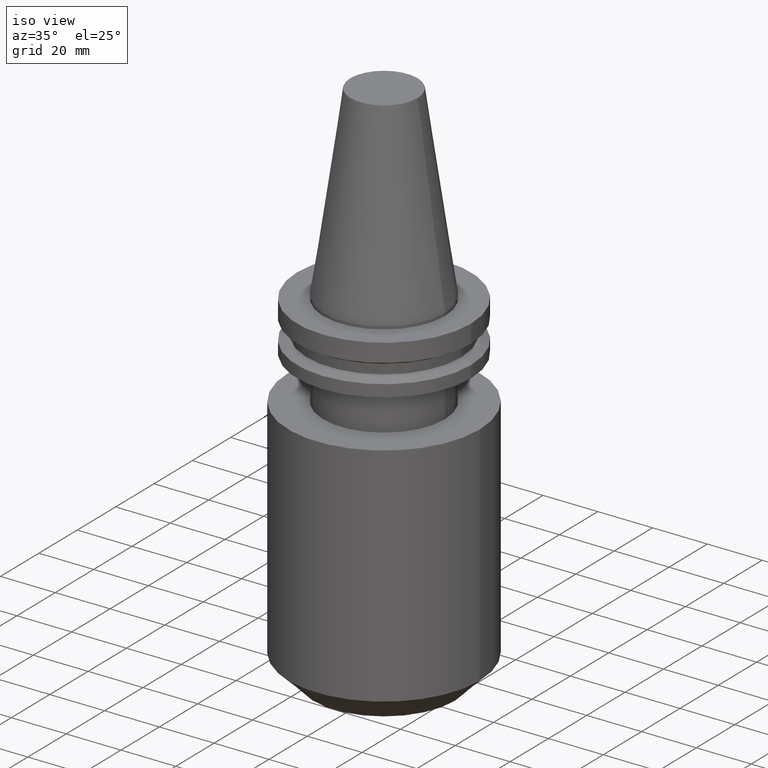
[diagram: clean part render]
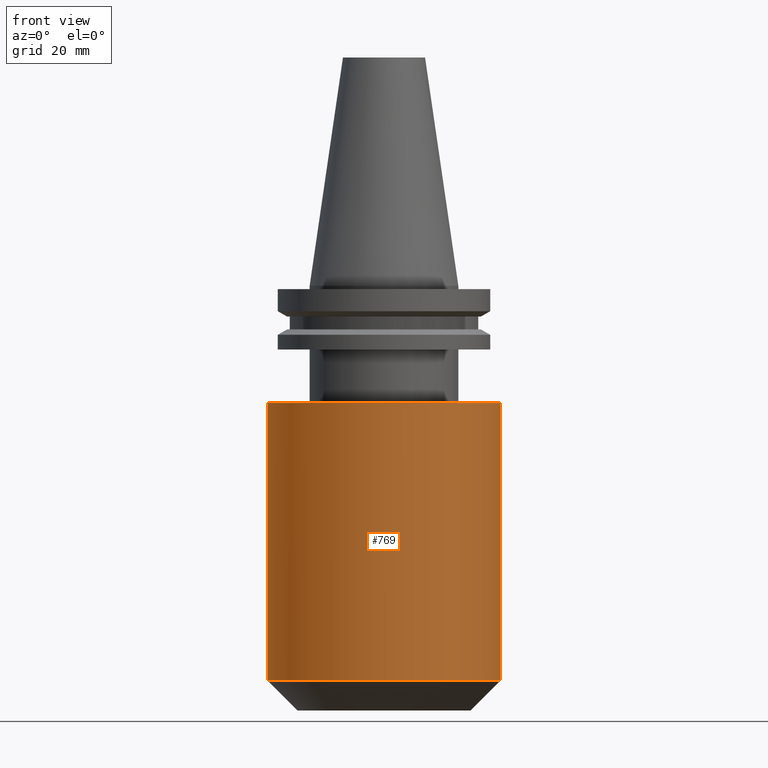
[diagram: tour spotlight — one face highlighted and labeled with its STEP entity id]
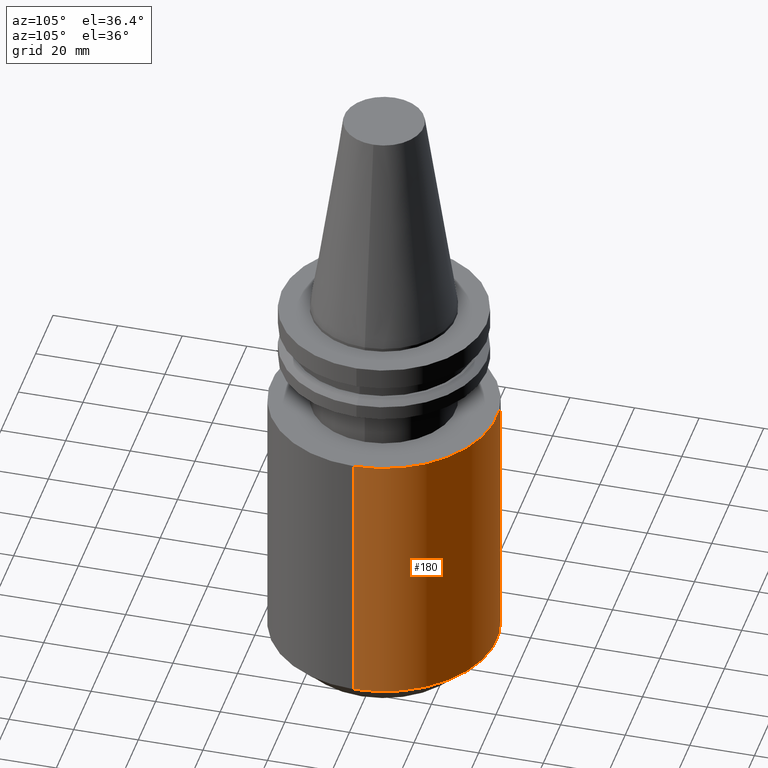
[diagram: tour spotlight — one face highlighted and labeled with its STEP entity id]
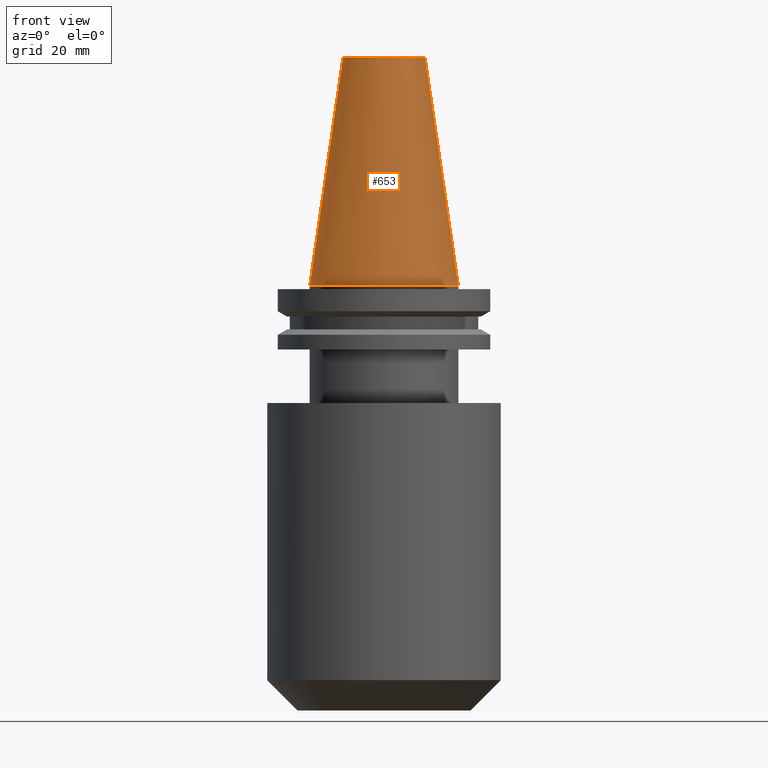
[diagram: tour spotlight — one face highlighted and labeled with its STEP entity id]
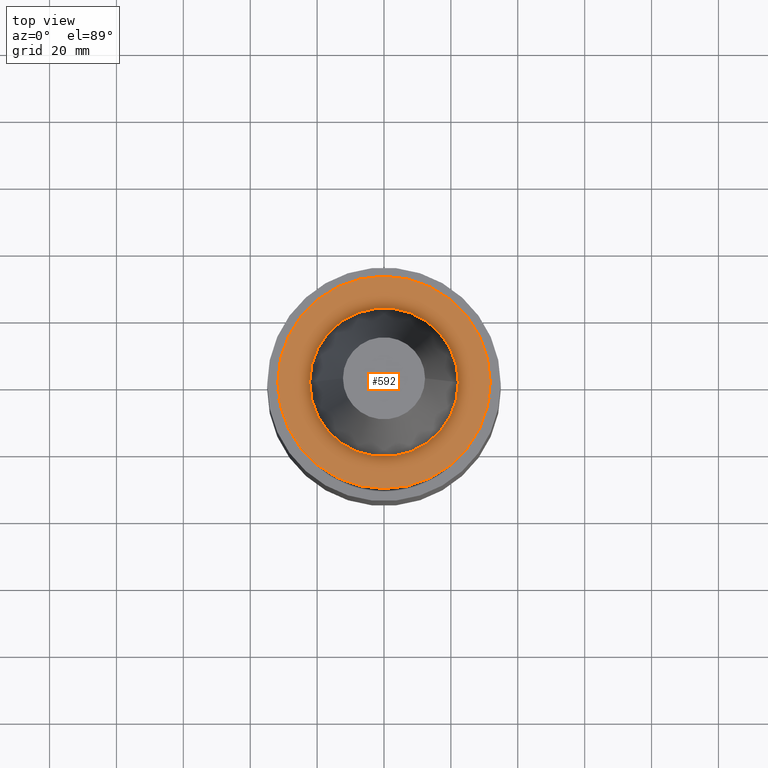
[diagram: tour spotlight — one face highlighted and labeled with its STEP entity id]
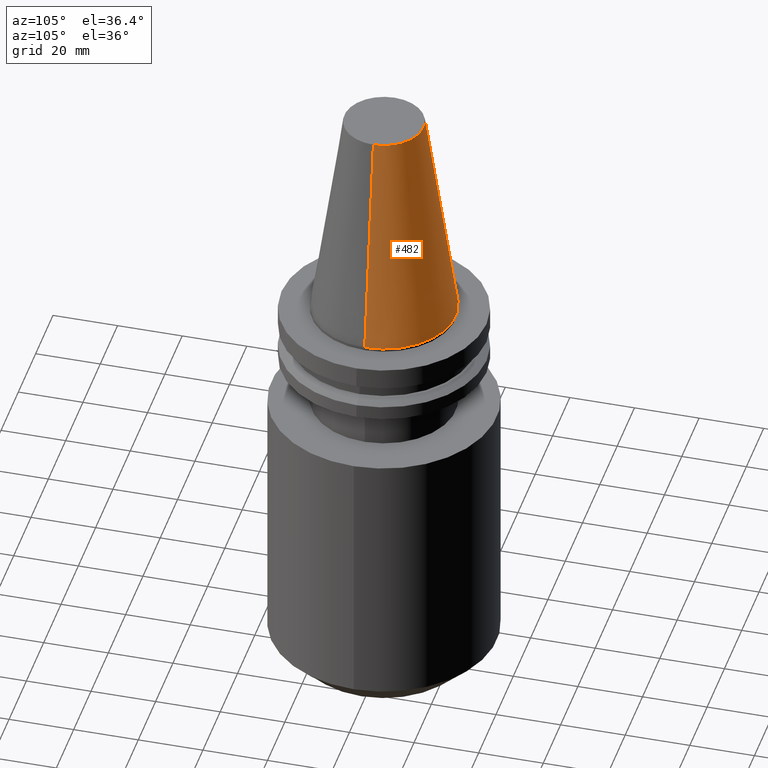
[diagram: tour spotlight — one face highlighted and labeled with its STEP entity id]
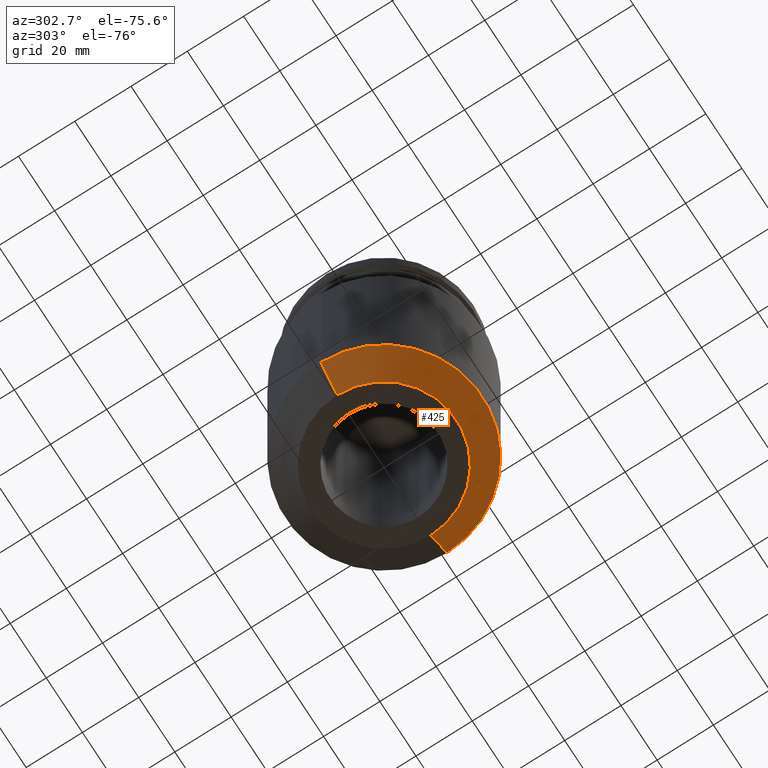
[diagram: tour spotlight — one face highlighted and labeled with its STEP entity id]
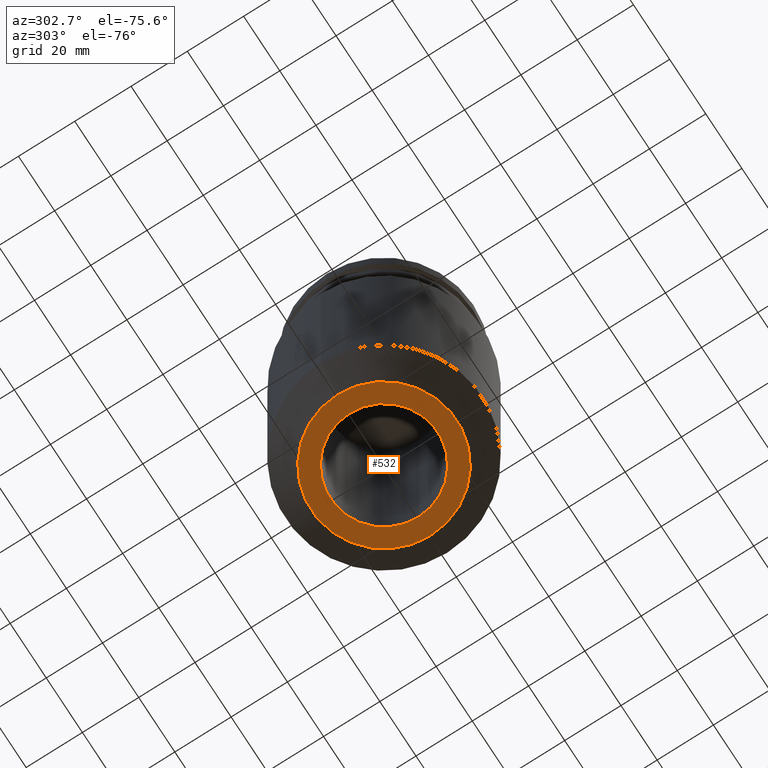
[diagram: tour spotlight — one face highlighted and labeled with its STEP entity id]
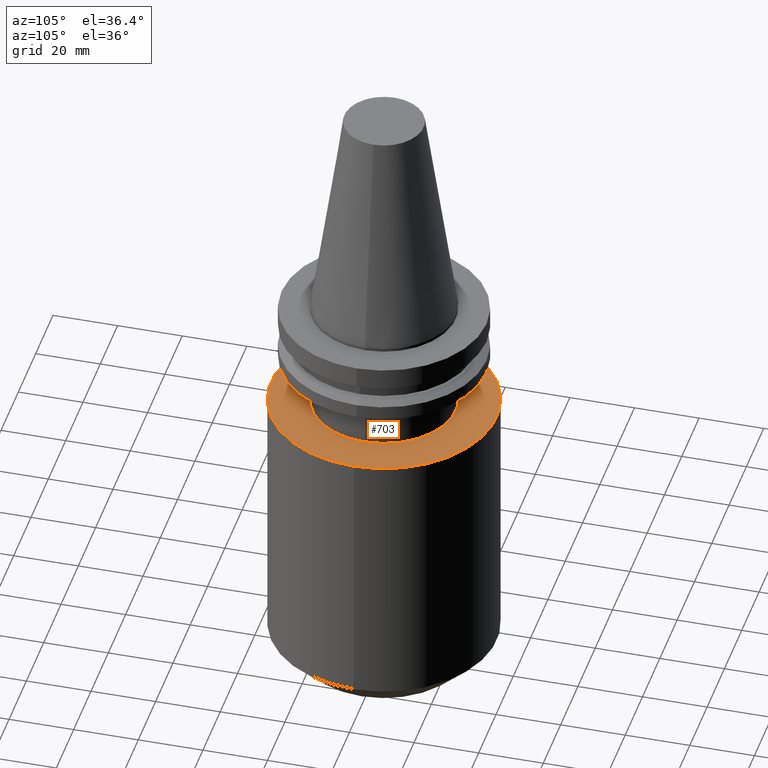
[diagram: tour spotlight — one face highlighted and labeled with its STEP entity id]
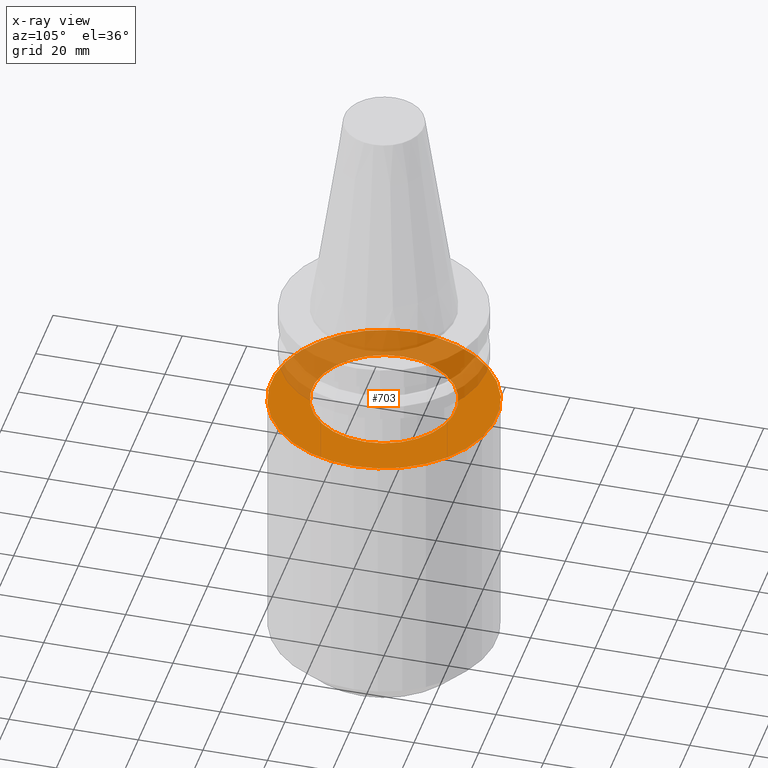
[diagram: x-ray of the same camera — body ghosted, this tour face saturated]
A machine part: a face-by-face anatomy tour. The part has 30 B-rep faces; the first image is the clean iso view, then the 8 largest visible faces are spotlighted one at a time (largest first), each with its STEP entity span.

Face 1 — front view, entity #769. In plain terms, the highlighted cylindrical surface (partial cylindrical patch) has radius 34.925 mm, axis along (-0, -0, 1).
Definition (entity closure, byte-faithful):
#8 = ORIENTED_EDGE ( 'NONE', *, *, #758, .F. ) ;
#11 = VERTEX_POINT ( 'NONE', #57 ) ;
#35 = CARTESIAN_POINT ( 'NONE',  ( 34.92499999999999716, 0.000000000000000000, 0.000000000000000000 ) ) ;
#50 = VERTEX_POINT ( 'NONE', #563 ) ;
#57 = CARTESIAN_POINT ( 'NONE',  ( -34.92499999999999716, 4.277078946022130887E-15, -35.04999999999999716 ) ) ;
#97 = CYLINDRICAL_SURFACE ( 'NONE', #293, 34.92499999999999716 ) ;
#110 = CARTESIAN_POINT ( 'NONE',  ( 0.000000000000000000, 0.000000000000000000, -117.9000000000000057 ) ) ;
#144 = EDGE_CURVE ( 'NONE', #11, #813, #384, .T. ) ;
#159 = ORIENTED_EDGE ( 'NONE', *, *, #233, .T. ) ;
#172 = VECTOR ( 'NONE', #296, 1000.000000000000000 ) ;
#186 = CARTESIAN_POINT ( 'NONE',  ( -34.92499999999999716, 4.277078946022130887E-15, -117.9000000000000057 ) ) ;
#226 = DIRECTION ( 'NONE',  ( -0.000000000000000000, -0.000000000000000000, 1.000000000000000000 ) ) ;
#231 = CARTESIAN_POINT ( 'NONE',  ( -34.92499999999999716, 4.277078946022130887E-15, 0.000000000000000000 ) ) ;
#233 = EDGE_CURVE ( 'NONE', #50, #813, #357, .T. ) ;
#282 = EDGE_LOOP ( 'NONE', ( #8, #328, #159, #304 ) ) ;
#284 = DIRECTION ( 'NONE',  ( 1.000000000000000000, 0.000000000000000000, 0.000000000000000000 ) ) ;
#293 = AXIS2_PLACEMENT_3D ( 'NONE', #492, #756, #767 ) ;
#296 = DIRECTION ( 'NONE',  ( -0.000000000000000000, -0.000000000000000000, 1.000000000000000000 ) ) ;
#304 = ORIENTED_EDGE ( 'NONE', *, *, #144, .F. ) ;
#305 = FACE_OUTER_BOUND ( 'NONE', #282, .T. ) ;
#328 = ORIENTED_EDGE ( 'NONE', *, *, #781, .T. ) ;
#357 = LINE ( 'NONE', #35, #172 ) ;
#384 = CIRCLE ( 'NONE', #631, 34.92499999999999716 ) ;
#435 = DIRECTION ( 'NONE',  ( 1.000000000000000000, 0.000000000000000000, 0.000000000000000000 ) ) ;
#438 = LINE ( 'NONE', #231, #543 ) ;
#472 = CARTESIAN_POINT ( 'NONE',  ( 34.92499999999999716, 0.000000000000000000, -35.04999999999999716 ) ) ;
#492 = CARTESIAN_POINT ( 'NONE',  ( 0.000000000000000000, 0.000000000000000000, 0.000000000000000000 ) ) ;
#533 = VERTEX_POINT ( 'NONE', #186 ) ;
#543 = VECTOR ( 'NONE', #226, 1000.000000000000000 ) ;
#563 = CARTESIAN_POINT ( 'NONE',  ( 34.92499999999999716, 0.000000000000000000, -117.9000000000000057 ) ) ;
#627 = DIRECTION ( 'NONE',  ( -0.000000000000000000, -0.000000000000000000, 1.000000000000000000 ) ) ;
#631 = AXIS2_PLACEMENT_3D ( 'NONE', #681, #627, #284 ) ;
#661 = CIRCLE ( 'NONE', #776, 34.92499999999999716 ) ;
#681 = CARTESIAN_POINT ( 'NONE',  ( 0.000000000000000000, 0.000000000000000000, -35.04999999999999716 ) ) ;
#700 = DIRECTION ( 'NONE',  ( -0.000000000000000000, -0.000000000000000000, 1.000000000000000000 ) ) ;
#756 = DIRECTION ( 'NONE',  ( -0.000000000000000000, -0.000000000000000000, 1.000000000000000000 ) ) ;
#758 = EDGE_CURVE ( 'NONE', #533, #11, #438, .T. ) ;
#767 = DIRECTION ( 'NONE',  ( 1.000000000000000000, 0.000000000000000000, 0.000000000000000000 ) ) ;
#769 = ADVANCED_FACE ( 'NONE', ( #305 ), #97, .T. ) ;
#776 = AXIS2_PLACEMENT_3D ( 'NONE', #110, #700, #435 ) ;
#781 = EDGE_CURVE ( 'NONE', #533, #50, #661, .T. ) ;
#813 = VERTEX_POINT ( 'NONE', #472 ) ;

Face 2 — auxiliary view, entity #180. In plain terms, the highlighted cylindrical surface (partial cylindrical patch) has radius 34.925 mm, axis along (-0, -0, 1).
Definition (entity closure, byte-faithful):
#11 = VERTEX_POINT ( 'NONE', #57 ) ;
#33 = ORIENTED_EDGE ( 'NONE', *, *, #418, .T. ) ;
#35 = CARTESIAN_POINT ( 'NONE',  ( 34.92499999999999716, 0.000000000000000000, 0.000000000000000000 ) ) ;
#50 = VERTEX_POINT ( 'NONE', #563 ) ;
#57 = CARTESIAN_POINT ( 'NONE',  ( -34.92499999999999716, 4.277078946022130887E-15, -35.04999999999999716 ) ) ;
#102 = DIRECTION ( 'NONE',  ( 1.000000000000000000, 0.000000000000000000, 0.000000000000000000 ) ) ;
#107 = DIRECTION ( 'NONE',  ( 1.000000000000000000, 0.000000000000000000, 0.000000000000000000 ) ) ;
#131 = AXIS2_PLACEMENT_3D ( 'NONE', #536, #811, #784 ) ;
#161 = CARTESIAN_POINT ( 'NONE',  ( 0.000000000000000000, 0.000000000000000000, -35.04999999999999716 ) ) ;
#172 = VECTOR ( 'NONE', #296, 1000.000000000000000 ) ;
#180 = ADVANCED_FACE ( 'NONE', ( #752 ), #221, .T. ) ;
#186 = CARTESIAN_POINT ( 'NONE',  ( -34.92499999999999716, 4.277078946022130887E-15, -117.9000000000000057 ) ) ;
#218 = EDGE_CURVE ( 'NONE', #813, #11, #361, .T. ) ;
#220 = CIRCLE ( 'NONE', #131, 34.92499999999999716 ) ;
#221 = CYLINDRICAL_SURFACE ( 'NONE', #848, 34.92499999999999716 ) ;
#226 = DIRECTION ( 'NONE',  ( -0.000000000000000000, -0.000000000000000000, 1.000000000000000000 ) ) ;
#231 = CARTESIAN_POINT ( 'NONE',  ( -34.92499999999999716, 4.277078946022130887E-15, 0.000000000000000000 ) ) ;
#233 = EDGE_CURVE ( 'NONE', #50, #813, #357, .T. ) ;
#277 = AXIS2_PLACEMENT_3D ( 'NONE', #161, #424, #102 ) ;
#296 = DIRECTION ( 'NONE',  ( -0.000000000000000000, -0.000000000000000000, 1.000000000000000000 ) ) ;
#357 = LINE ( 'NONE', #35, #172 ) ;
#361 = CIRCLE ( 'NONE', #277, 34.92499999999999716 ) ;
#418 = EDGE_CURVE ( 'NONE', #50, #533, #220, .T. ) ;
#424 = DIRECTION ( 'NONE',  ( -0.000000000000000000, -0.000000000000000000, 1.000000000000000000 ) ) ;
#438 = LINE ( 'NONE', #231, #543 ) ;
#472 = CARTESIAN_POINT ( 'NONE',  ( 34.92499999999999716, 0.000000000000000000, -35.04999999999999716 ) ) ;
#520 = ORIENTED_EDGE ( 'NONE', *, *, #233, .F. ) ;
#523 = ORIENTED_EDGE ( 'NONE', *, *, #218, .F. ) ;
#533 = VERTEX_POINT ( 'NONE', #186 ) ;
#536 = CARTESIAN_POINT ( 'NONE',  ( 0.000000000000000000, 0.000000000000000000, -117.9000000000000057 ) ) ;
#543 = VECTOR ( 'NONE', #226, 1000.000000000000000 ) ;
#563 = CARTESIAN_POINT ( 'NONE',  ( 34.92499999999999716, 0.000000000000000000, -117.9000000000000057 ) ) ;
#608 = DIRECTION ( 'NONE',  ( -0.000000000000000000, -0.000000000000000000, 1.000000000000000000 ) ) ;
#690 = EDGE_LOOP ( 'NONE', ( #33, #840, #523, #520 ) ) ;
#752 = FACE_OUTER_BOUND ( 'NONE', #690, .T. ) ;
#758 = EDGE_CURVE ( 'NONE', #533, #11, #438, .T. ) ;
#762 = CARTESIAN_POINT ( 'NONE',  ( 0.000000000000000000, 0.000000000000000000, 0.000000000000000000 ) ) ;
#784 = DIRECTION ( 'NONE',  ( 1.000000000000000000, 0.000000000000000000, 0.000000000000000000 ) ) ;
#811 = DIRECTION ( 'NONE',  ( -0.000000000000000000, -0.000000000000000000, 1.000000000000000000 ) ) ;
#813 = VERTEX_POINT ( 'NONE', #472 ) ;
#840 = ORIENTED_EDGE ( 'NONE', *, *, #758, .T. ) ;
#848 = AXIS2_PLACEMENT_3D ( 'NONE', #762, #608, #107 ) ;

Face 3 — front view, entity #653. In plain terms, the highlighted conical surface has half-angle 8.297 deg.
Definition (entity closure, byte-faithful):
#58 = EDGE_CURVE ( 'NONE', #801, #558, #557, .T. ) ;
#76 = ORIENTED_EDGE ( 'NONE', *, *, #245, .T. ) ;
#84 = CARTESIAN_POINT ( 'NONE',  ( 0.000000000000000000, 0.000000000000000000, 0.000000000000000000 ) ) ;
#96 = ORIENTED_EDGE ( 'NONE', *, *, #359, .F. ) ;
#104 = DIRECTION ( 'NONE',  ( -0.000000000000000000, -0.000000000000000000, 1.000000000000000000 ) ) ;
#113 = CARTESIAN_POINT ( 'NONE',  ( -22.22500000000000142, 0.000000000000000000, 0.000000000000000000 ) ) ;
#156 = EDGE_CURVE ( 'NONE', #698, #558, #171, .T. ) ;
#170 = DIRECTION ( 'NONE',  ( -0.1443082272672999711, 0.000000000000000000, -0.9895327864921755756 ) ) ;
#171 = CIRCLE ( 'NONE', #190, 22.22500000000000142 ) ;
#188 = EDGE_LOOP ( 'NONE', ( #433, #96, #76, #696 ) ) ;
#190 = AXIS2_PLACEMENT_3D ( 'NONE', #227, #237, #365 ) ;
#227 = CARTESIAN_POINT ( 'NONE',  ( 0.000000000000000000, 0.000000000000000000, 0.000000000000000000 ) ) ;
#237 = DIRECTION ( 'NONE',  ( -0.000000000000000000, -0.000000000000000000, 1.000000000000000000 ) ) ;
#245 = EDGE_CURVE ( 'NONE', #538, #698, #830, .T. ) ;
#271 = DIRECTION ( 'NONE',  ( 0.000000000000000000, 0.000000000000000000, -1.000000000000000000 ) ) ;
#275 = AXIS2_PLACEMENT_3D ( 'NONE', #84, #271, #341 ) ;
#295 = VECTOR ( 'NONE', #170, 999.9999999999998863 ) ;
#341 = DIRECTION ( 'NONE',  ( -1.000000000000000000, 0.000000000000000000, 0.000000000000000000 ) ) ;
#359 = EDGE_CURVE ( 'NONE', #538, #801, #436, .T. ) ;
#365 = DIRECTION ( 'NONE',  ( 1.000000000000000000, 0.000000000000000000, 0.000000000000000000 ) ) ;
#415 = AXIS2_PLACEMENT_3D ( 'NONE', #747, #104, #683 ) ;
#433 = ORIENTED_EDGE ( 'NONE', *, *, #58, .F. ) ;
#436 = CIRCLE ( 'NONE', #415, 12.27178102086201150 ) ;
#481 = CONICAL_SURFACE ( 'NONE', #275, 22.22500000000000142, 0.1448138465474119174 ) ;
#493 = CARTESIAN_POINT ( 'NONE',  ( -22.22500000000000142, 0.000000000000000000, 0.000000000000000000 ) ) ;
#538 = VERTEX_POINT ( 'NONE', #854 ) ;
#557 = LINE ( 'NONE', #833, #837 ) ;
#558 = VERTEX_POINT ( 'NONE', #795 ) ;
#593 = FACE_OUTER_BOUND ( 'NONE', #188, .T. ) ;
#603 = CARTESIAN_POINT ( 'NONE',  ( 12.27178102086201150, 2.112318622904291439E-15, 68.25000000000000000 ) ) ;
#653 = ADVANCED_FACE ( 'NONE', ( #593 ), #481, .T. ) ;
#683 = DIRECTION ( 'NONE',  ( 1.000000000000000000, 0.000000000000000000, 0.000000000000000000 ) ) ;
#696 = ORIENTED_EDGE ( 'NONE', *, *, #156, .T. ) ;
#698 = VERTEX_POINT ( 'NONE', #113 ) ;
#747 = CARTESIAN_POINT ( 'NONE',  ( 0.000000000000000000, 0.000000000000000000, 68.25000000000000000 ) ) ;
#765 = DIRECTION ( 'NONE',  ( 0.1443082272672999711, 1.767266086135276757E-17, -0.9895327864921755756 ) ) ;
#795 = CARTESIAN_POINT ( 'NONE',  ( 22.22500000000000142, 2.721777511104992849E-15, 0.000000000000000000 ) ) ;
#801 = VERTEX_POINT ( 'NONE', #603 ) ;
#830 = LINE ( 'NONE', #493, #295 ) ;
#833 = CARTESIAN_POINT ( 'NONE',  ( 22.22500000000000142, 2.721777511104992849E-15, 0.000000000000000000 ) ) ;
#837 = VECTOR ( 'NONE', #765, 999.9999999999998863 ) ;
#854 = CARTESIAN_POINT ( 'NONE',  ( -12.27178102086201150, 0.000000000000000000, 68.25000000000000000 ) ) ;

Face 4 — top view, entity #592. In plain terms, the highlighted planar face has unit normal (0, 0, -1).
Definition (entity closure, byte-faithful):
#12 = FACE_BOUND ( 'NONE', #132, .T. ) ;
#41 = DIRECTION ( 'NONE',  ( -0.000000000000000000, -0.000000000000000000, 1.000000000000000000 ) ) ;
#48 = EDGE_CURVE ( 'NONE', #200, #129, #564, .T. ) ;
#119 = AXIS2_PLACEMENT_3D ( 'NONE', #692, #41, #169 ) ;
#129 = VERTEX_POINT ( 'NONE', #419 ) ;
#132 = EDGE_LOOP ( 'NONE', ( #517, #618 ) ) ;
#142 = AXIS2_PLACEMENT_3D ( 'NONE', #503, #717, #778 ) ;
#146 = PLANE ( 'NONE',  #819 ) ;
#151 = CARTESIAN_POINT ( 'NONE',  ( 22.22500000000000142, 0.000000000000000000, -1.000000000000000888 ) ) ;
#160 = DIRECTION ( 'NONE',  ( -0.000000000000000000, -0.000000000000000000, 1.000000000000000000 ) ) ;
#164 = CARTESIAN_POINT ( 'NONE',  ( -22.22500000000000142, 2.721777511104992849E-15, -1.000000000000000888 ) ) ;
#167 = DIRECTION ( 'NONE',  ( -0.000000000000000000, -0.000000000000000000, 1.000000000000000000 ) ) ;
#169 = DIRECTION ( 'NONE',  ( 1.000000000000000000, 0.000000000000000000, 0.000000000000000000 ) ) ;
#200 = VERTEX_POINT ( 'NONE', #348 ) ;
#206 = CARTESIAN_POINT ( 'NONE',  ( 0.000000000000000000, 31.75000000000000000, -0.9999999999999995559 ) ) ;
#347 = DIRECTION ( 'NONE',  ( -1.000000000000000000, 0.000000000000000000, -0.000000000000000000 ) ) ;
#348 = CARTESIAN_POINT ( 'NONE',  ( -31.75000000000000000, 3.888253587292846476E-15, -1.000000000000000888 ) ) ;
#391 = DIRECTION ( 'NONE',  ( 0.000000000000000000, 0.000000000000000000, -1.000000000000000000 ) ) ;
#419 = CARTESIAN_POINT ( 'NONE',  ( 31.75000000000000000, 0.000000000000000000, -1.000000000000000888 ) ) ;
#475 = CIRCLE ( 'NONE', #119, 31.75000000000000000 ) ;
#503 = CARTESIAN_POINT ( 'NONE',  ( 0.000000000000000000, 0.000000000000000000, -1.000000000000000888 ) ) ;
#507 = EDGE_CURVE ( 'NONE', #671, #783, #586, .T. ) ;
#517 = ORIENTED_EDGE ( 'NONE', *, *, #507, .F. ) ;
#524 = FACE_OUTER_BOUND ( 'NONE', #740, .T. ) ;
#564 = CIRCLE ( 'NONE', #705, 31.75000000000000000 ) ;
#579 = ORIENTED_EDGE ( 'NONE', *, *, #48, .T. ) ;
#586 = CIRCLE ( 'NONE', #142, 22.22500000000000142 ) ;
#592 = ADVANCED_FACE ( 'NONE', ( #12, #524 ), #146, .F. ) ;
#618 = ORIENTED_EDGE ( 'NONE', *, *, #842, .F. ) ;
#623 = DIRECTION ( 'NONE',  ( 1.000000000000000000, 0.000000000000000000, 0.000000000000000000 ) ) ;
#630 = CIRCLE ( 'NONE', #816, 22.22500000000000142 ) ;
#671 = VERTEX_POINT ( 'NONE', #151 ) ;
#686 = DIRECTION ( 'NONE',  ( 1.000000000000000000, 0.000000000000000000, 0.000000000000000000 ) ) ;
#692 = CARTESIAN_POINT ( 'NONE',  ( 0.000000000000000000, 0.000000000000000000, -1.000000000000000888 ) ) ;
#705 = AXIS2_PLACEMENT_3D ( 'NONE', #768, #167, #623 ) ;
#717 = DIRECTION ( 'NONE',  ( -0.000000000000000000, -0.000000000000000000, 1.000000000000000000 ) ) ;
#740 = EDGE_LOOP ( 'NONE', ( #754, #579 ) ) ;
#750 = CARTESIAN_POINT ( 'NONE',  ( 0.000000000000000000, 0.000000000000000000, -1.000000000000000888 ) ) ;
#751 = EDGE_CURVE ( 'NONE', #129, #200, #475, .T. ) ;
#754 = ORIENTED_EDGE ( 'NONE', *, *, #751, .T. ) ;
#768 = CARTESIAN_POINT ( 'NONE',  ( 0.000000000000000000, 0.000000000000000000, -1.000000000000000888 ) ) ;
#778 = DIRECTION ( 'NONE',  ( 1.000000000000000000, 0.000000000000000000, 0.000000000000000000 ) ) ;
#783 = VERTEX_POINT ( 'NONE', #164 ) ;
#816 = AXIS2_PLACEMENT_3D ( 'NONE', #750, #160, #686 ) ;
#819 = AXIS2_PLACEMENT_3D ( 'NONE', #206, #391, #347 ) ;
#842 = EDGE_CURVE ( 'NONE', #783, #671, #630, .T. ) ;

Face 5 — auxiliary view, entity #482. In plain terms, the highlighted conical surface has half-angle 8.297 deg.
Definition (entity closure, byte-faithful):
#19 = DIRECTION ( 'NONE',  ( -0.000000000000000000, -0.000000000000000000, 1.000000000000000000 ) ) ;
#58 = EDGE_CURVE ( 'NONE', #801, #558, #557, .T. ) ;
#112 = ORIENTED_EDGE ( 'NONE', *, *, #58, .T. ) ;
#113 = CARTESIAN_POINT ( 'NONE',  ( -22.22500000000000142, 0.000000000000000000, 0.000000000000000000 ) ) ;
#162 = CARTESIAN_POINT ( 'NONE',  ( 0.000000000000000000, 0.000000000000000000, 68.25000000000000000 ) ) ;
#170 = DIRECTION ( 'NONE',  ( -0.1443082272672999711, 0.000000000000000000, -0.9895327864921755756 ) ) ;
#224 = DIRECTION ( 'NONE',  ( -0.000000000000000000, -0.000000000000000000, 1.000000000000000000 ) ) ;
#228 = DIRECTION ( 'NONE',  ( 1.000000000000000000, 0.000000000000000000, 0.000000000000000000 ) ) ;
#245 = EDGE_CURVE ( 'NONE', #538, #698, #830, .T. ) ;
#247 = DIRECTION ( 'NONE',  ( 0.000000000000000000, 0.000000000000000000, -1.000000000000000000 ) ) ;
#295 = VECTOR ( 'NONE', #170, 999.9999999999998863 ) ;
#326 = DIRECTION ( 'NONE',  ( -1.000000000000000000, 0.000000000000000000, 0.000000000000000000 ) ) ;
#343 = DIRECTION ( 'NONE',  ( 1.000000000000000000, 0.000000000000000000, 0.000000000000000000 ) ) ;
#373 = CONICAL_SURFACE ( 'NONE', #566, 22.22500000000000142, 0.1448138465474119174 ) ;
#388 = EDGE_CURVE ( 'NONE', #558, #698, #839, .T. ) ;
#397 = EDGE_CURVE ( 'NONE', #801, #538, #707, .T. ) ;
#444 = AXIS2_PLACEMENT_3D ( 'NONE', #753, #224, #343 ) ;
#455 = AXIS2_PLACEMENT_3D ( 'NONE', #162, #19, #228 ) ;
#462 = ORIENTED_EDGE ( 'NONE', *, *, #388, .T. ) ;
#482 = ADVANCED_FACE ( 'NONE', ( #851 ), #373, .T. ) ;
#493 = CARTESIAN_POINT ( 'NONE',  ( -22.22500000000000142, 0.000000000000000000, 0.000000000000000000 ) ) ;
#538 = VERTEX_POINT ( 'NONE', #854 ) ;
#557 = LINE ( 'NONE', #833, #837 ) ;
#558 = VERTEX_POINT ( 'NONE', #795 ) ;
#566 = AXIS2_PLACEMENT_3D ( 'NONE', #569, #247, #326 ) ;
#569 = CARTESIAN_POINT ( 'NONE',  ( 0.000000000000000000, 0.000000000000000000, 0.000000000000000000 ) ) ;
#603 = CARTESIAN_POINT ( 'NONE',  ( 12.27178102086201150, 2.112318622904291439E-15, 68.25000000000000000 ) ) ;
#658 = ORIENTED_EDGE ( 'NONE', *, *, #245, .F. ) ;
#665 = EDGE_LOOP ( 'NONE', ( #672, #112, #462, #658 ) ) ;
#672 = ORIENTED_EDGE ( 'NONE', *, *, #397, .F. ) ;
#698 = VERTEX_POINT ( 'NONE', #113 ) ;
#707 = CIRCLE ( 'NONE', #455, 12.27178102086201150 ) ;
#753 = CARTESIAN_POINT ( 'NONE',  ( 0.000000000000000000, 0.000000000000000000, 0.000000000000000000 ) ) ;
#765 = DIRECTION ( 'NONE',  ( 0.1443082272672999711, 1.767266086135276757E-17, -0.9895327864921755756 ) ) ;
#795 = CARTESIAN_POINT ( 'NONE',  ( 22.22500000000000142, 2.721777511104992849E-15, 0.000000000000000000 ) ) ;
#801 = VERTEX_POINT ( 'NONE', #603 ) ;
#830 = LINE ( 'NONE', #493, #295 ) ;
#833 = CARTESIAN_POINT ( 'NONE',  ( 22.22500000000000142, 2.721777511104992849E-15, 0.000000000000000000 ) ) ;
#837 = VECTOR ( 'NONE', #765, 999.9999999999998863 ) ;
#839 = CIRCLE ( 'NONE', #444, 22.22500000000000142 ) ;
#851 = FACE_OUTER_BOUND ( 'NONE', #665, .T. ) ;
#854 = CARTESIAN_POINT ( 'NONE',  ( -12.27178102086201150, 0.000000000000000000, 68.25000000000000000 ) ) ;

Face 6 — auxiliary view, entity #425. In plain terms, the highlighted conical surface has half-angle 45 deg.
Definition (entity closure, byte-faithful):
#32 = ORIENTED_EDGE ( 'NONE', *, *, #457, .T. ) ;
#40 = VERTEX_POINT ( 'NONE', #760 ) ;
#50 = VERTEX_POINT ( 'NONE', #563 ) ;
#52 = CARTESIAN_POINT ( 'NONE',  ( 0.000000000000000000, 0.000000000000000000, -127.0000000000000000 ) ) ;
#60 = DIRECTION ( 'NONE',  ( -0.000000000000000000, -0.000000000000000000, 1.000000000000000000 ) ) ;
#66 = DIRECTION ( 'NONE',  ( -0.000000000000000000, -0.000000000000000000, 1.000000000000000000 ) ) ;
#110 = CARTESIAN_POINT ( 'NONE',  ( 0.000000000000000000, 0.000000000000000000, -117.9000000000000057 ) ) ;
#114 = EDGE_CURVE ( 'NONE', #624, #533, #269, .T. ) ;
#127 = FACE_OUTER_BOUND ( 'NONE', #390, .T. ) ;
#157 = LINE ( 'NONE', #544, #364 ) ;
#186 = CARTESIAN_POINT ( 'NONE',  ( -34.92499999999999716, 4.277078946022130887E-15, -117.9000000000000057 ) ) ;
#189 = DIRECTION ( 'NONE',  ( 1.000000000000000000, 0.000000000000000000, 0.000000000000000000 ) ) ;
#239 = CIRCLE ( 'NONE', #514, 25.82499999999997087 ) ;
#268 = CARTESIAN_POINT ( 'NONE',  ( -25.82499999999997087, 3.719864652410083281E-15, -127.0000000000000000 ) ) ;
#269 = LINE ( 'NONE', #342, #788 ) ;
#301 = EDGE_CURVE ( 'NONE', #40, #50, #157, .T. ) ;
#313 = CARTESIAN_POINT ( 'NONE',  ( 0.000000000000000000, 0.000000000000000000, -127.0000000000000000 ) ) ;
#342 = CARTESIAN_POINT ( 'NONE',  ( -25.82499999999997087, 3.162650358798036069E-15, -127.0000000000000000 ) ) ;
#345 = CONICAL_SURFACE ( 'NONE', #635, 25.82499999999997087, 0.7853981633974500554 ) ;
#364 = VECTOR ( 'NONE', #678, 1000.000000000000000 ) ;
#379 = DIRECTION ( 'NONE',  ( 1.000000000000000000, 0.000000000000000000, 0.000000000000000000 ) ) ;
#390 = EDGE_LOOP ( 'NONE', ( #636, #32, #812, #802 ) ) ;
#425 = ADVANCED_FACE ( 'NONE', ( #127 ), #345, .T. ) ;
#435 = DIRECTION ( 'NONE',  ( 1.000000000000000000, 0.000000000000000000, 0.000000000000000000 ) ) ;
#457 = EDGE_CURVE ( 'NONE', #624, #40, #239, .T. ) ;
#514 = AXIS2_PLACEMENT_3D ( 'NONE', #313, #60, #189 ) ;
#533 = VERTEX_POINT ( 'NONE', #186 ) ;
#544 = CARTESIAN_POINT ( 'NONE',  ( 25.82499999999997087, 0.000000000000000000, -127.0000000000000000 ) ) ;
#563 = CARTESIAN_POINT ( 'NONE',  ( 34.92499999999999716, 0.000000000000000000, -117.9000000000000057 ) ) ;
#624 = VERTEX_POINT ( 'NONE', #268 ) ;
#635 = AXIS2_PLACEMENT_3D ( 'NONE', #52, #66, #379 ) ;
#636 = ORIENTED_EDGE ( 'NONE', *, *, #114, .F. ) ;
#661 = CIRCLE ( 'NONE', #776, 34.92499999999999716 ) ;
#678 = DIRECTION ( 'NONE',  ( 0.7071067811865487940, 0.000000000000000000, 0.7071067811865463515 ) ) ;
#700 = DIRECTION ( 'NONE',  ( -0.000000000000000000, -0.000000000000000000, 1.000000000000000000 ) ) ;
#760 = CARTESIAN_POINT ( 'NONE',  ( 25.82499999999997087, 0.000000000000000000, -127.0000000000000000 ) ) ;
#776 = AXIS2_PLACEMENT_3D ( 'NONE', #110, #700, #435 ) ;
#781 = EDGE_CURVE ( 'NONE', #533, #50, #661, .T. ) ;
#788 = VECTOR ( 'NONE', #847, 1000.000000000000000 ) ;
#802 = ORIENTED_EDGE ( 'NONE', *, *, #781, .F. ) ;
#812 = ORIENTED_EDGE ( 'NONE', *, *, #301, .T. ) ;
#847 = DIRECTION ( 'NONE',  ( -0.7071067811865487940, 8.659560562354948882E-17, 0.7071067811865463515 ) ) ;

Face 7 — auxiliary view, entity #532. In plain terms, the highlighted planar face has unit normal (0, -0, 1).
Definition (entity closure, byte-faithful):
#7 = DIRECTION ( 'NONE',  ( 1.000000000000000000, 0.000000000000000000, 0.000000000000000000 ) ) ;
#13 = DIRECTION ( 'NONE',  ( -0.000000000000000000, -0.000000000000000000, 1.000000000000000000 ) ) ;
#17 = AXIS2_PLACEMENT_3D ( 'NONE', #604, #757, #289 ) ;
#40 = VERTEX_POINT ( 'NONE', #760 ) ;
#46 = CARTESIAN_POINT ( 'NONE',  ( 0.000000000000000000, 0.000000000000000000, -127.0000000000000000 ) ) ;
#60 = DIRECTION ( 'NONE',  ( -0.000000000000000000, -0.000000000000000000, 1.000000000000000000 ) ) ;
#69 = EDGE_CURVE ( 'NONE', #40, #624, #647, .T. ) ;
#89 = ORIENTED_EDGE ( 'NONE', *, *, #69, .F. ) ;
#184 = CARTESIAN_POINT ( 'NONE',  ( 0.000000000000000000, 19.05000000000000071, -127.0000000000000000 ) ) ;
#189 = DIRECTION ( 'NONE',  ( 1.000000000000000000, 0.000000000000000000, 0.000000000000000000 ) ) ;
#202 = EDGE_CURVE ( 'NONE', #821, #545, #615, .T. ) ;
#205 = AXIS2_PLACEMENT_3D ( 'NONE', #184, #383, #780 ) ;
#225 = EDGE_LOOP ( 'NONE', ( #360, #685 ) ) ;
#239 = CIRCLE ( 'NONE', #514, 25.82499999999997087 ) ;
#260 = CIRCLE ( 'NONE', #849, 19.05000000000000071 ) ;
#267 = ORIENTED_EDGE ( 'NONE', *, *, #457, .F. ) ;
#268 = CARTESIAN_POINT ( 'NONE',  ( -25.82499999999997087, 3.719864652410083281E-15, -127.0000000000000000 ) ) ;
#289 = DIRECTION ( 'NONE',  ( 1.000000000000000000, 0.000000000000000000, 0.000000000000000000 ) ) ;
#313 = CARTESIAN_POINT ( 'NONE',  ( 0.000000000000000000, 0.000000000000000000, -127.0000000000000000 ) ) ;
#315 = CARTESIAN_POINT ( 'NONE',  ( 19.05000000000000071, 0.000000000000000000, -127.0000000000000000 ) ) ;
#337 = EDGE_LOOP ( 'NONE', ( #89, #267 ) ) ;
#360 = ORIENTED_EDGE ( 'NONE', *, *, #392, .T. ) ;
#383 = DIRECTION ( 'NONE',  ( 0.000000000000000000, -0.000000000000000000, 1.000000000000000000 ) ) ;
#392 = EDGE_CURVE ( 'NONE', #545, #821, #260, .T. ) ;
#448 = PLANE ( 'NONE',  #205 ) ;
#457 = EDGE_CURVE ( 'NONE', #624, #40, #239, .T. ) ;
#464 = AXIS2_PLACEMENT_3D ( 'NONE', #46, #13, #7 ) ;
#480 = CARTESIAN_POINT ( 'NONE',  ( -19.05000000000000071, 2.332952152375708043E-15, -127.0000000000000000 ) ) ;
#484 = CARTESIAN_POINT ( 'NONE',  ( 0.000000000000000000, 0.000000000000000000, -127.0000000000000000 ) ) ;
#506 = FACE_OUTER_BOUND ( 'NONE', #337, .T. ) ;
#514 = AXIS2_PLACEMENT_3D ( 'NONE', #313, #60, #189 ) ;
#532 = ADVANCED_FACE ( 'NONE', ( #506, #774 ), #448, .F. ) ;
#545 = VERTEX_POINT ( 'NONE', #315 ) ;
#600 = DIRECTION ( 'NONE',  ( 1.000000000000000000, 0.000000000000000000, 0.000000000000000000 ) ) ;
#604 = CARTESIAN_POINT ( 'NONE',  ( 0.000000000000000000, 0.000000000000000000, -127.0000000000000000 ) ) ;
#615 = CIRCLE ( 'NONE', #17, 19.05000000000000071 ) ;
#624 = VERTEX_POINT ( 'NONE', #268 ) ;
#647 = CIRCLE ( 'NONE', #464, 25.82499999999997087 ) ;
#685 = ORIENTED_EDGE ( 'NONE', *, *, #202, .T. ) ;
#757 = DIRECTION ( 'NONE',  ( -0.000000000000000000, -0.000000000000000000, 1.000000000000000000 ) ) ;
#760 = CARTESIAN_POINT ( 'NONE',  ( 25.82499999999997087, 0.000000000000000000, -127.0000000000000000 ) ) ;
#774 = FACE_BOUND ( 'NONE', #225, .T. ) ;
#780 = DIRECTION ( 'NONE',  ( 1.000000000000000000, 0.000000000000000000, 0.000000000000000000 ) ) ;
#821 = VERTEX_POINT ( 'NONE', #480 ) ;
#826 = DIRECTION ( 'NONE',  ( -0.000000000000000000, -0.000000000000000000, 1.000000000000000000 ) ) ;
#849 = AXIS2_PLACEMENT_3D ( 'NONE', #484, #826, #600 ) ;

Face 8 — auxiliary view, entity #703. An x-ray twin of the same camera follows (body ghosted, this face saturated) — the face is partly hidden behind the body. In plain terms, the highlighted planar face has unit normal (0, 0, -1).
Definition (entity closure, byte-faithful):
#11 = VERTEX_POINT ( 'NONE', #57 ) ;
#57 = CARTESIAN_POINT ( 'NONE',  ( -34.92499999999999716, 4.277078946022130887E-15, -35.04999999999999716 ) ) ;
#75 = AXIS2_PLACEMENT_3D ( 'NONE', #209, #463, #738 ) ;
#101 = FACE_OUTER_BOUND ( 'NONE', #529, .T. ) ;
#102 = DIRECTION ( 'NONE',  ( 1.000000000000000000, 0.000000000000000000, 0.000000000000000000 ) ) ;
#144 = EDGE_CURVE ( 'NONE', #11, #813, #384, .T. ) ;
#161 = CARTESIAN_POINT ( 'NONE',  ( 0.000000000000000000, 0.000000000000000000, -35.04999999999999716 ) ) ;
#209 = CARTESIAN_POINT ( 'NONE',  ( 0.000000000000000000, 0.000000000000000000, -35.04999999999999716 ) ) ;
#211 = ORIENTED_EDGE ( 'NONE', *, *, #218, .T. ) ;
#218 = EDGE_CURVE ( 'NONE', #813, #11, #361, .T. ) ;
#277 = AXIS2_PLACEMENT_3D ( 'NONE', #161, #424, #102 ) ;
#284 = DIRECTION ( 'NONE',  ( 1.000000000000000000, 0.000000000000000000, 0.000000000000000000 ) ) ;
#287 = VERTEX_POINT ( 'NONE', #470 ) ;
#300 = DIRECTION ( 'NONE',  ( 0.000000000000000000, 0.000000000000000000, -1.000000000000000000 ) ) ;
#338 = DIRECTION ( 'NONE',  ( 0.000000000000000000, 0.000000000000000000, -1.000000000000000000 ) ) ;
#356 = FACE_BOUND ( 'NONE', #679, .T. ) ;
#361 = CIRCLE ( 'NONE', #277, 34.92499999999999716 ) ;
#363 = CARTESIAN_POINT ( 'NONE',  ( 0.000000000000000000, 19.05000000000000071, -35.04999999999999716 ) ) ;
#384 = CIRCLE ( 'NONE', #631, 34.92499999999999716 ) ;
#416 = ORIENTED_EDGE ( 'NONE', *, *, #664, .T. ) ;
#424 = DIRECTION ( 'NONE',  ( -0.000000000000000000, -0.000000000000000000, 1.000000000000000000 ) ) ;
#434 = AXIS2_PLACEMENT_3D ( 'NONE', #363, #300, #829 ) ;
#463 = DIRECTION ( 'NONE',  ( 0.000000000000000000, 0.000000000000000000, -1.000000000000000000 ) ) ;
#468 = CARTESIAN_POINT ( 'NONE',  ( 22.22500000000000142, 0.000000000000000000, -35.04999999999999716 ) ) ;
#470 = CARTESIAN_POINT ( 'NONE',  ( -22.22500000000000142, 2.721777511104992849E-15, -35.04999999999999716 ) ) ;
#472 = CARTESIAN_POINT ( 'NONE',  ( 34.92499999999999716, 0.000000000000000000, -35.04999999999999716 ) ) ;
#485 = ORIENTED_EDGE ( 'NONE', *, *, #639, .T. ) ;
#527 = AXIS2_PLACEMENT_3D ( 'NONE', #666, #338, #595 ) ;
#529 = EDGE_LOOP ( 'NONE', ( #211, #552 ) ) ;
#552 = ORIENTED_EDGE ( 'NONE', *, *, #144, .T. ) ;
#553 = PLANE ( 'NONE',  #434 ) ;
#581 = VERTEX_POINT ( 'NONE', #468 ) ;
#595 = DIRECTION ( 'NONE',  ( -1.000000000000000000, 0.000000000000000000, 0.000000000000000000 ) ) ;
#627 = DIRECTION ( 'NONE',  ( -0.000000000000000000, -0.000000000000000000, 1.000000000000000000 ) ) ;
#631 = AXIS2_PLACEMENT_3D ( 'NONE', #681, #627, #284 ) ;
#638 = CIRCLE ( 'NONE', #527, 22.22500000000000142 ) ;
#639 = EDGE_CURVE ( 'NONE', #581, #287, #638, .T. ) ;
#664 = EDGE_CURVE ( 'NONE', #287, #581, #817, .T. ) ;
#666 = CARTESIAN_POINT ( 'NONE',  ( 0.000000000000000000, 0.000000000000000000, -35.04999999999999716 ) ) ;
#679 = EDGE_LOOP ( 'NONE', ( #485, #416 ) ) ;
#681 = CARTESIAN_POINT ( 'NONE',  ( 0.000000000000000000, 0.000000000000000000, -35.04999999999999716 ) ) ;
#703 = ADVANCED_FACE ( 'NONE', ( #356, #101 ), #553, .F. ) ;
#738 = DIRECTION ( 'NONE',  ( -1.000000000000000000, 0.000000000000000000, 0.000000000000000000 ) ) ;
#813 = VERTEX_POINT ( 'NONE', #472 ) ;
#817 = CIRCLE ( 'NONE', #75, 22.22500000000000142 ) ;
#829 = DIRECTION ( 'NONE',  ( -1.000000000000000000, 0.000000000000000000, -0.000000000000000000 ) ) ;